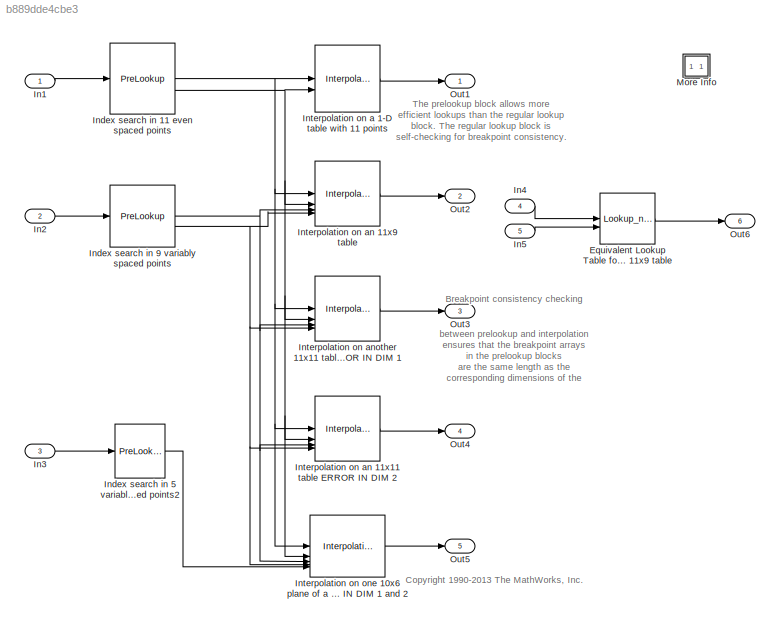
MODEL slx_b889dde4cbe3
KIND model
CONFIG AbsTol = auto
CONFIG EnableMultiTasking = on
CONFIG FixedStep = auto
CONFIG MaxStep = auto
CONFIG MinStep = auto
CONFIG RelTol = 1e-3
CONFIG SampleTimeConstraint = Unconstrained
CONFIG SolverName = ode45
CONFIG StartTime = 0.0
CONFIG StopTime = 10.0
BLOCK [Lookup_n-D] Equivalent Lookup Table for Interpolation on an 11x9 table
  BreakpointsForDimension1 = [0:10:100]
  BreakpointsForDimension2 = [ 0.5, 1, 3, 5, 15, 45, 95, 96, 97 ]
  InputPortMap = u0,u1
  RndMeth = Simplest
  Table = reshape([1:99], [11,9])
BLOCK [Inport] In1
BLOCK [Inport] In2
  Port = 2
BLOCK [Inport] In3
  Port = 3
BLOCK [Inport] In4
  NameLocation = top
  Port = 4
BLOCK [Inport] In5
  Port = 5
BLOCK [PreLookup] Index search in 11 even spaced points
  BreakpointsData = [0:10:100]
  ExtrapMethod = Linear
  IndexSearchMethod = Evenly spaced points
  InputPortMap = u0
BLOCK [PreLookup] Index search in 5 variably spaced points2
  BeginIndexSearchUsingPreviousIndexResult = on
  BreakpointsData = [-100, 125, 150, 200, 500]
  DiagnosticForOutOfRangeInput = Warning
  IndexSearchMethod = Linear search
  InputPortMap = u0
  OutputSelection = Index only
BLOCK [PreLookup] Index search in 9 variably spaced points
  BeginIndexSearchUsingPreviousIndexResult = on
  BreakpointsData = [ 0.5, 1, 3, 5, 15, 45, 95, 96, 97 ]
  ExtrapMethod = Linear
  InputPortMap = u0
BLOCK [Interpolation_n-D] Interpolation on a 1-D table with 11 points
  ExtrapMethod = Clip
  InputPortMap = u0,u1
  NumberOfTableDimensions = 1
  Table = [1:11].*[1:11]
BLOCK [Interpolation_n-D] Interpolation on an 11x11 table ERROR IN DIM 2 
  InputPortMap = u0,u1,u2,u3
  Table = sqrt([0:10]'*[0:10])
BLOCK [Interpolation_n-D] Interpolation on an 11x9 table
  ExtrapMethod = Clip
  InputPortMap = u0,u1,u2,u3
  Table = reshape([1:99], [11,9])
BLOCK [Interpolation_n-D] Interpolation on another 11x11 table ERROR IN DIM 1
  InputPortMap = u0,u1,u2,u3
  Table = membrane(1,5,9,9)
BLOCK [Interpolation_n-D] Interpolation on one 10x6 plane of a 10x6x5 table ERROR IN DIM 1 and 2 
  ExtrapMethod = Clip
  InputPortMap = u0,u1,u2,u3,u4
  NumSelectionDims = 1
  NumberOfTableDimensions = 3
  Table = reshape([1:300], [10,6,5])
BLOCK [SubSystem] More Info
  OpenFcn = showExample('simulink_features/UsingThePrelookupAndInterpolationBlocksExample')
BLOCK [Outport] Out1
  VectorParamsAs1DForOutWhenUnconnected = off
BLOCK [Outport] Out2
  Port = 2
  VectorParamsAs1DForOutWhenUnconnected = off
BLOCK [Outport] Out3
  NameLocation = top
  Port = 3
  VectorParamsAs1DForOutWhenUnconnected = off
BLOCK [Outport] Out4
  Port = 4
  VectorParamsAs1DForOutWhenUnconnected = off
BLOCK [Outport] Out5
  Port = 5
  VectorParamsAs1DForOutWhenUnconnected = off
BLOCK [Outport] Out6
  Port = 6
  VectorParamsAs1DForOutWhenUnconnected = off
ANNOTATION (root): The prelookup block allows more efficient lookups than the regular lookup block. The regular lookup block is self-checking for breakpoint consistency.
ANNOTATION (root): Breakpoint consistency checking between prelookup and interpolation ensures that the breakpoint arrays in the prelookup blocks are the same length as the corresponding dimensions of the connected interpolation blocks. In this model, the breakpoint arrays have deliberately been created with incorrect lengths to illustrate the breakpoint checking. Update diagram to see the error message.
ANNOTATION (root): <copyright redacted>
LINE Equivalent Lookup Table for Interpolation on an 11x9 table:1 -> Out6:1
LINE In1:1 -> Index search in 11 even spaced points:1
LINE In2:1 -> Index search in 9 variably spaced points:1
LINE In3:1 -> Index search in 5 variably spaced points2:1
LINE In4:1 -> Equivalent Lookup Table for Interpolation on an 11x9 table:1
LINE In5:1 -> Equivalent Lookup Table for Interpolation on an 11x9 table:2
NET Index search in 11 even spaced points:1 -> Interpolation on a 1-D table with 11 points:1, Interpolation on an 11x11 table ERROR IN DIM 2 :1, Interpolation on an 11x9 table:1, Interpolation on another 11x11 table ERROR IN DIM 1:1, Interpolation on one 10x6 plane of a 10x6x5 table ERROR IN DIM 1 and 2 :1
NET Index search in 11 even spaced points:2 -> Interpolation on a 1-D table with 11 points:2, Interpolation on an 11x11 table ERROR IN DIM 2 :2, Interpolation on an 11x9 table:2, Interpolation on another 11x11 table ERROR IN DIM 1:2, Interpolation on one 10x6 plane of a 10x6x5 table ERROR IN DIM 1 and 2 :2
LINE Index search in 5 variably spaced points2:1 -> Interpolation on one 10x6 plane of a 10x6x5 table ERROR IN DIM 1 and 2 :5
NET Index search in 9 variably spaced points:1 -> Interpolation on an 11x11 table ERROR IN DIM 2 :3, Interpolation on an 11x9 table:3, Interpolation on another 11x11 table ERROR IN DIM 1:3, Interpolation on one 10x6 plane of a 10x6x5 table ERROR IN DIM 1 and 2 :3
NET Index search in 9 variably spaced points:2 -> Interpolation on an 11x11 table ERROR IN DIM 2 :4, Interpolation on an 11x9 table:4, Interpolation on another 11x11 table ERROR IN DIM 1:4, Interpolation on one 10x6 plane of a 10x6x5 table ERROR IN DIM 1 and 2 :4
LINE Interpolation on a 1-D table with 11 points:1 -> Out1:1
LINE Interpolation on an 11x11 table ERROR IN DIM 2 :1 -> Out4:1
LINE Interpolation on an 11x9 table:1 -> Out2:1
LINE Interpolation on another 11x11 table ERROR IN DIM 1:1 -> Out3:1
LINE Interpolation on one 10x6 plane of a 10x6x5 table ERROR IN DIM 1 and 2 :1 -> Out5:1
note: NET lines group one-source signal fan-out (src -> all destinations, sorted); 1:1 wires keep LINE
